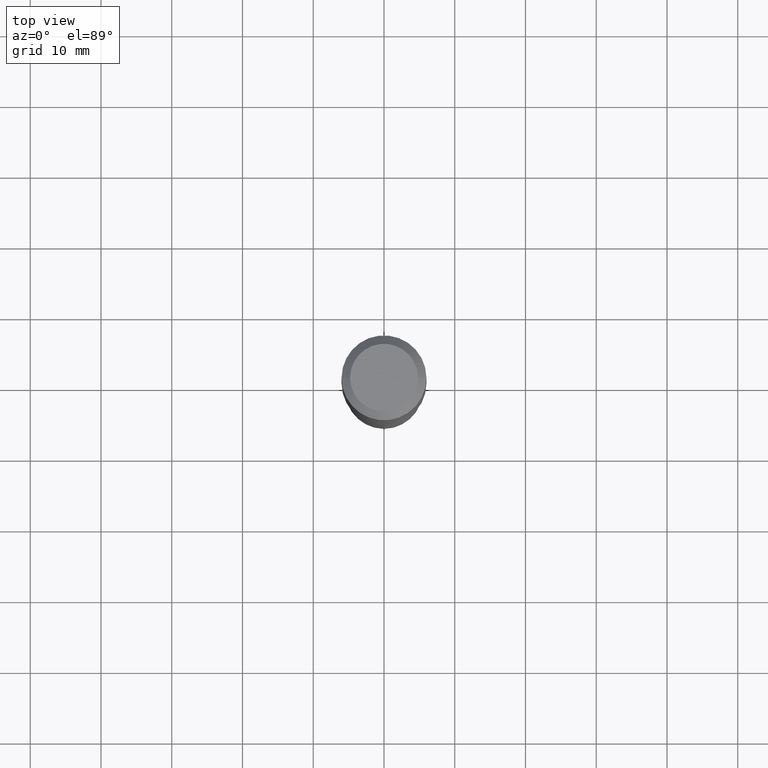
[diagram: clean part render]
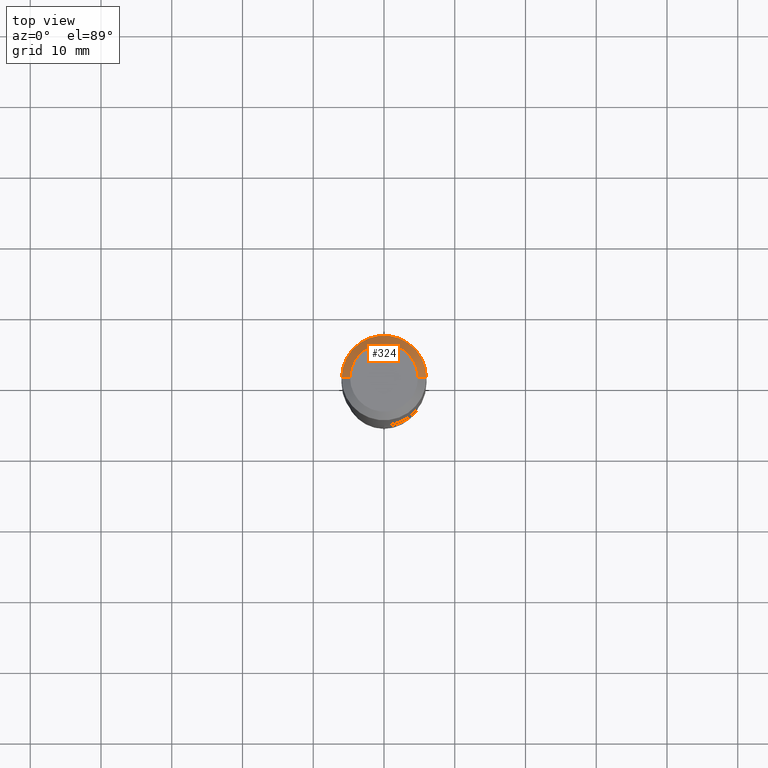
[diagram: same view with one face highlighted and labeled with its STEP entity id]
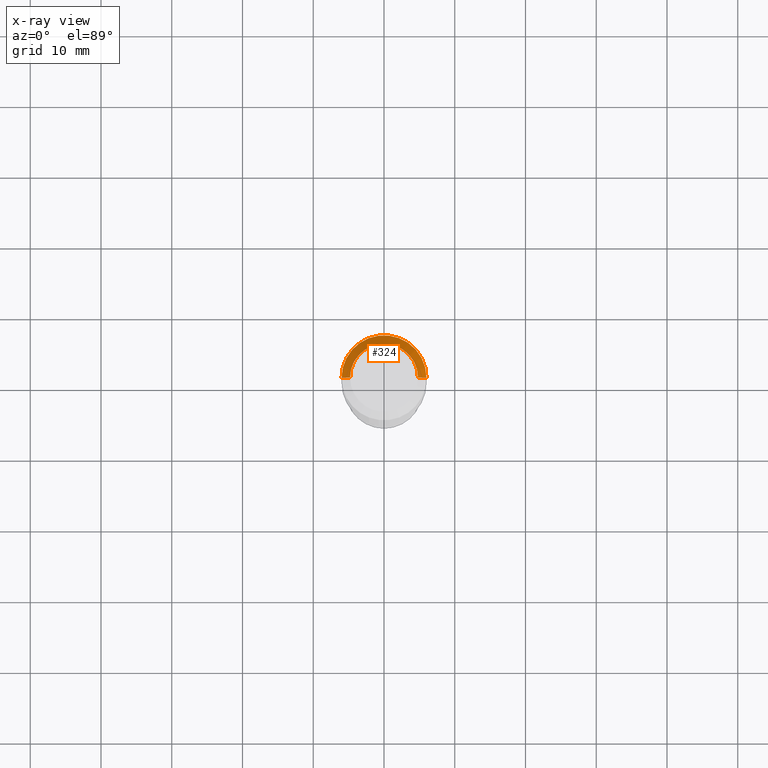
[diagram: x-ray of the same camera — body ghosted, the highlighted face saturated]
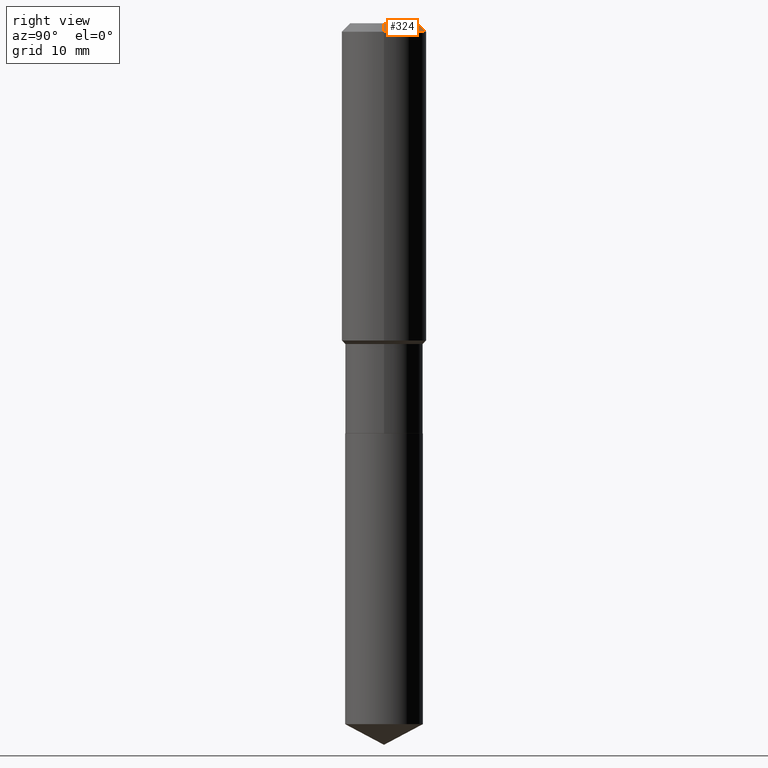
[diagram: same view with one face highlighted and labeled with its STEP entity id]
A machine part, top view. The second image highlights one B-rep face of the part: STEP entity #324.
The next image is the same camera in x-ray: the body ghosted, the highlighted face saturated — about 0% of this face is hidden behind the body in this view.
A second angle (right view) of the same face is appended — the face is thin or edge-on in the first view.
In plain terms, the highlighted conical surface has half-angle 45 deg.
Its self-contained STEP definition (entity closure, byte-faithful):
#10 = CONICAL_SURFACE ( 'NONE', #51, 0.2361999999999999933, 0.7853981633974452814 ) ;
#14 = LINE ( 'NONE', #24, #285 ) ;
#23 = CIRCLE ( 'NONE', #242, 0.2361999999999999933 ) ;
#24 = CARTESIAN_POINT ( 'NONE',  ( -0.2361999999999999933, 1.484438206022545019E-15, -0.04724000000000028177 ) ) ;
#37 = EDGE_LOOP ( 'NONE', ( #171, #70, #288, #329 ) ) ;
#51 = AXIS2_PLACEMENT_3D ( 'NONE', #249, #102, #66 ) ;
#56 = CARTESIAN_POINT ( 'NONE',  ( 1.155239464041865506E-30, -1.649375784469511859E-16, -0.04724000000000028177 ) ) ;
#65 = VERTEX_POINT ( 'NONE', #91 ) ;
#66 = DIRECTION ( 'NONE',  ( -1.000000000000000000, 6.982962677686266711E-15, 0.000000000000000000 ) ) ;
#70 = ORIENTED_EDGE ( 'NONE', *, *, #147, .T. ) ;
#91 = CARTESIAN_POINT ( 'NONE',  ( 0.1889600000000000168, -1.540873453589747738E-15, 3.855188123725863225E-18 ) ) ;
#102 = DIRECTION ( 'NONE',  ( 2.445468806185136597E-29, -3.491481338843145583E-15, -1.000000000000000000 ) ) ;
#147 = EDGE_CURVE ( 'NONE', #65, #240, #156, .T. ) ;
#156 = LINE ( 'NONE', #309, #254 ) ;
#171 = ORIENTED_EDGE ( 'NONE', *, *, #478, .F. ) ;
#210 = FACE_OUTER_BOUND ( 'NONE', #37, .T. ) ;
#223 = CARTESIAN_POINT ( 'NONE',  ( -9.427742298522546243E-47, 1.346031739168365344E-32, 3.855188123715862256E-18 ) ) ;
#240 = VERTEX_POINT ( 'NONE', #432 ) ;
#242 = AXIS2_PLACEMENT_3D ( 'NONE', #56, #356, #317 ) ;
#249 = CARTESIAN_POINT ( 'NONE',  ( 1.155239464041865506E-30, -1.649375784469511859E-16, -0.04724000000000028177 ) ) ;
#252 = CIRCLE ( 'NONE', #347, 0.1889600000000000168 ) ;
#254 = VECTOR ( 'NONE', #297, 39.37007874015748143 ) ;
#282 = CARTESIAN_POINT ( 'NONE',  ( -0.1889600000000000168, 1.401969416799070942E-15, 3.855188123706346622E-18 ) ) ;
#285 = VECTOR ( 'NONE', #391, 39.37007874015748143 ) ;
#288 = ORIENTED_EDGE ( 'NONE', *, *, #316, .T. ) ;
#292 = EDGE_CURVE ( 'NONE', #402, #375, #14, .T. ) ;
#297 = DIRECTION ( 'NONE',  ( 0.7071067811865453523, -7.319954787623248157E-15, -0.7071067811865496822 ) ) ;
#309 = CARTESIAN_POINT ( 'NONE',  ( 0.2361999999999999933, -1.785387205520586782E-15, -0.04724000000000028177 ) ) ;
#316 = EDGE_CURVE ( 'NONE', #240, #375, #23, .T. ) ;
#317 = DIRECTION ( 'NONE',  ( 1.000000000000000000, -6.982962677686266711E-15, 0.000000000000000000 ) ) ;
#324 = ADVANCED_FACE ( 'NONE', ( #210 ), #10, .T. ) ;
#329 = ORIENTED_EDGE ( 'NONE', *, *, #292, .F. ) ;
#345 = DIRECTION ( 'NONE',  ( 1.000000000000000000, -6.982962677686266711E-15, 4.876185090822587894E-29 ) ) ;
#347 = AXIS2_PLACEMENT_3D ( 'NONE', #223, #352, #345 ) ;
#352 = DIRECTION ( 'NONE',  ( -2.445468806185136597E-29, 3.491481338843145583E-15, 1.000000000000000000 ) ) ;
#356 = DIRECTION ( 'NONE',  ( -2.445468806185136597E-29, 3.491481338843145583E-15, 1.000000000000000000 ) ) ;
#368 = CARTESIAN_POINT ( 'NONE',  ( -0.2361999999999999933, -1.486533860322317535E-15, -0.04724000000000028177 ) ) ;
#375 = VERTEX_POINT ( 'NONE', #368 ) ;
#391 = DIRECTION ( 'NONE',  ( -0.7071067811865453523, 2.468850131082234184E-15, -0.7071067811865496822 ) ) ;
#402 = VERTEX_POINT ( 'NONE', #282 ) ;
#432 = CARTESIAN_POINT ( 'NONE',  ( 0.2361999999999999933, -1.814313362916447440E-15, -0.04724000000000028177 ) ) ;
#478 = EDGE_CURVE ( 'NONE', #65, #402, #252, .T. ) ;